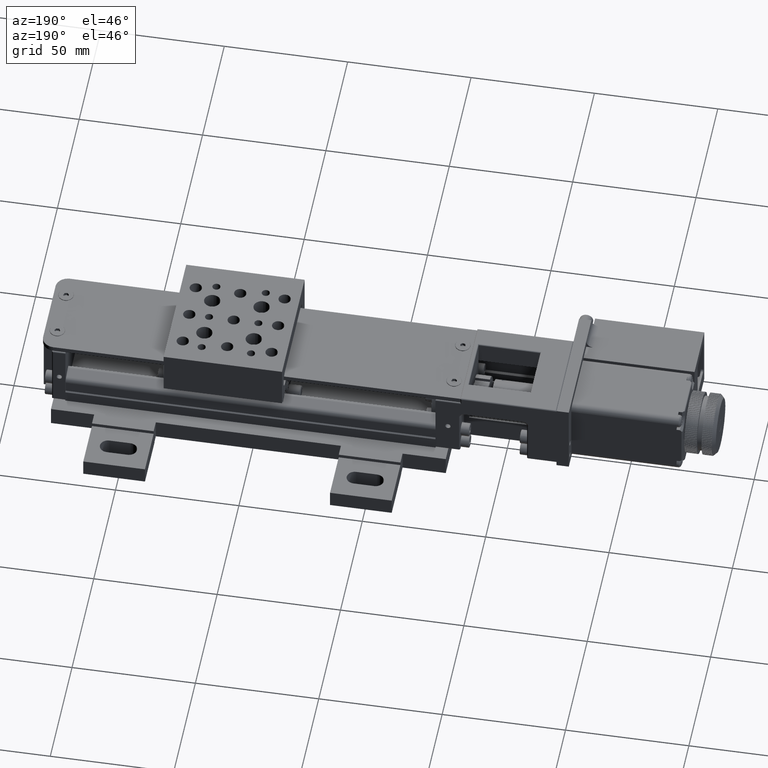
[diagram: clean part render]
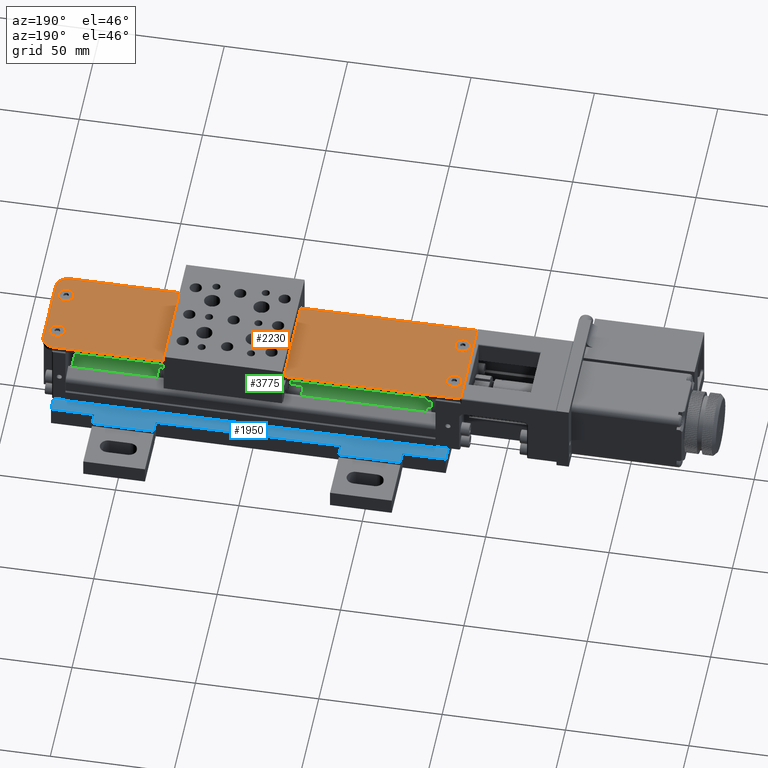
[diagram: same view with three faces highlighted in distinct colors, each labeled with its STEP entity id]
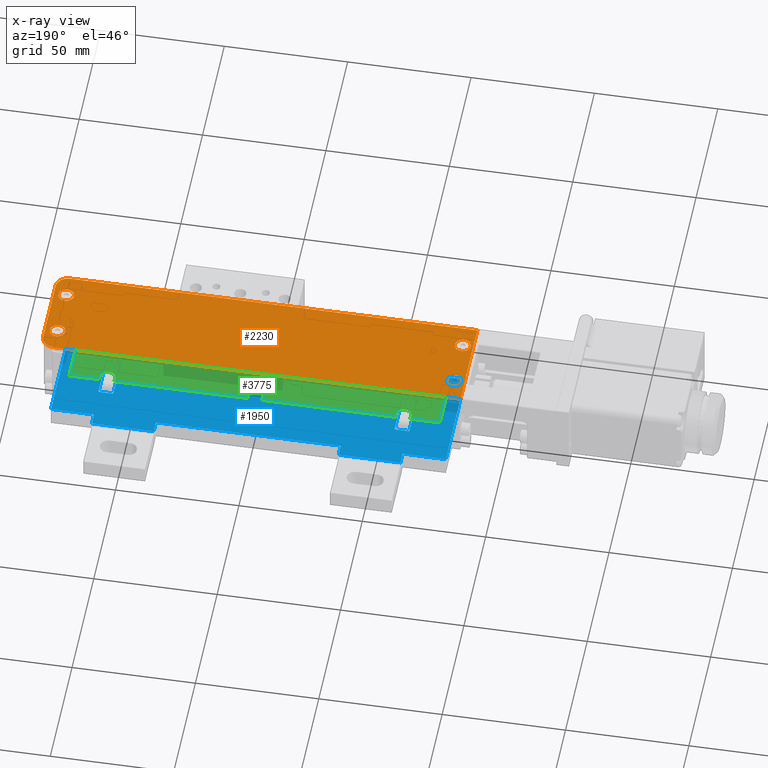
[diagram: x-ray of the same camera — body ghosted, the three highlighted faces saturated]
A machine part, auxiliary view with three faces highlighted in distinct colors.
The next image is the same camera in x-ray (body ghosted, the three faces saturated) — at least one of them is partly hidden behind the body in this view.
Their STEP definitions:

[orange] entity #2230 — the highlighted planar face has unit normal (0, 0, 1).
#62=FACE_BOUND('',#6952,.T.);
#63=FACE_BOUND('',#6953,.T.);
#64=FACE_BOUND('',#6954,.T.);
#65=FACE_BOUND('',#6955,.T.);
#684=PLANE('',#41369);
#2230=ADVANCED_FACE('',(#4567,#62,#63,#64,#65),#684,.T.);
#4567=FACE_OUTER_BOUND('',#6951,.T.);
#6951=EDGE_LOOP('',(#10798,#10799,#10800,#10801,#10802,#10803));
#6952=EDGE_LOOP('',(#10804,#10805,#10806,#10807));
#6953=EDGE_LOOP('',(#10808,#10809,#10810,#10811));
#6954=EDGE_LOOP('',(#10812,#10813,#10814,#10815));
#6955=EDGE_LOOP('',(#10816,#10817,#10818,#10819));
#10798=ORIENTED_EDGE('',*,*,#23501,.F.);
#10799=ORIENTED_EDGE('',*,*,#23502,.T.);
#10800=ORIENTED_EDGE('',*,*,#23497,.F.);
#10801=ORIENTED_EDGE('',*,*,#23494,.F.);
#10802=ORIENTED_EDGE('',*,*,#23503,.T.);
#10803=ORIENTED_EDGE('',*,*,#23486,.F.);
#10804=ORIENTED_EDGE('',*,*,#23444,.T.);
#10805=ORIENTED_EDGE('',*,*,#23443,.T.);
#10806=ORIENTED_EDGE('',*,*,#23442,.T.);
#10807=ORIENTED_EDGE('',*,*,#28929,.T.);
#10808=ORIENTED_EDGE('',*,*,#23453,.T.);
#10809=ORIENTED_EDGE('',*,*,#23452,.T.);
#10810=ORIENTED_EDGE('',*,*,#23451,.T.);
#10811=ORIENTED_EDGE('',*,*,#28934,.T.);
#10812=ORIENTED_EDGE('',*,*,#23465,.T.);
#10813=ORIENTED_EDGE('',*,*,#23464,.T.);
#10814=ORIENTED_EDGE('',*,*,#23463,.T.);
#10815=ORIENTED_EDGE('',*,*,#28939,.T.);
#10816=ORIENTED_EDGE('',*,*,#23477,.T.);
#10817=ORIENTED_EDGE('',*,*,#23476,.T.);
#10818=ORIENTED_EDGE('',*,*,#23475,.T.);
#10819=ORIENTED_EDGE('',*,*,#28944,.T.);
#23442=EDGE_CURVE('',#36647,#40262,#34084,.T.);
#23443=EDGE_CURVE('',#36649,#36647,#34085,.T.);
#23444=EDGE_CURVE('',#36648,#36649,#34086,.T.);
#23451=EDGE_CURVE('',#36654,#40265,#34091,.T.);
#23452=EDGE_CURVE('',#36656,#36654,#34092,.T.);
#23453=EDGE_CURVE('',#36655,#36656,#34093,.T.);
#23463=EDGE_CURVE('',#36662,#40268,#34101,.T.);
#23464=EDGE_CURVE('',#36664,#36662,#34102,.T.);
#23465=EDGE_CURVE('',#36663,#36664,#34103,.T.);
#23475=EDGE_CURVE('',#36670,#40271,#34111,.T.);
#23476=EDGE_CURVE('',#36672,#36670,#34112,.T.);
#23477=EDGE_CURVE('',#36671,#36672,#34113,.T.);
#23486=EDGE_CURVE('',#36678,#36679,#29829,.T.);
#23494=EDGE_CURVE('',#36685,#36686,#29837,.T.);
#23497=EDGE_CURVE('',#36686,#36687,#34119,.T.);
#23501=EDGE_CURVE('',#36688,#36678,#34121,.T.);
#23502=EDGE_CURVE('',#36688,#36687,#29841,.T.);
#23503=EDGE_CURVE('',#36685,#36679,#29842,.T.);
#28929=EDGE_CURVE('',#40262,#36648,#35810,.T.);
#28934=EDGE_CURVE('',#40265,#36655,#35813,.T.);
#28939=EDGE_CURVE('',#40268,#36663,#35816,.T.);
#28944=EDGE_CURVE('',#40271,#36671,#35819,.T.);
#29829=B_SPLINE_CURVE_WITH_KNOTS('',1,(#64374,#64375),.UNSPECIFIED.,.F.,
 .F.,(2,2),(0.,165.000000000001),.UNSPECIFIED.);
#29837=B_SPLINE_CURVE_WITH_KNOTS('',1,(#64390,#64391),.UNSPECIFIED.,.F.,
 .F.,(2,2),(0.,165.000000000001),.UNSPECIFIED.);
#29841=B_SPLINE_CURVE_WITH_KNOTS('',1,(#64410,#64411),.UNSPECIFIED.,.F.,
 .F.,(2,2),(0.,28.6),.UNSPECIFIED.);
#29842=B_SPLINE_CURVE_WITH_KNOTS('',1,(#64412,#64413),.UNSPECIFIED.,.F.,
 .F.,(2,2),(0.,38.6),.UNSPECIFIED.);
#34084=(
BOUNDED_CURVE()
B_SPLINE_CURVE(2,(#64244,#64245,#64246),.UNSPECIFIED.,.F.,.F.)
B_SPLINE_CURVE_WITH_KNOTS((3,3),(-9.8960168588078,-4.94800842940392),
 .UNSPECIFIED.)
CURVE()
GEOMETRIC_REPRESENTATION_ITEM()
RATIONAL_B_SPLINE_CURVE((1.,0.707106781186549,1.))
REPRESENTATION_ITEM('')
);
#34085=(
BOUNDED_CURVE()
B_SPLINE_CURVE(2,(#64247,#64248,#64249),.UNSPECIFIED.,.F.,.F.)
B_SPLINE_CURVE_WITH_KNOTS((3,3),(-4.94800842940388,0.),.UNSPECIFIED.)
CURVE()
GEOMETRIC_REPRESENTATION_ITEM()
RATIONAL_B_SPLINE_CURVE((1.,0.707106781186549,1.))
REPRESENTATION_ITEM('')
);
#34086=(
BOUNDED_CURVE()
B_SPLINE_CURVE(2,(#64250,#64251,#64252),.UNSPECIFIED.,.F.,.F.)
B_SPLINE_CURVE_WITH_KNOTS((3,3),(-9.8960168588078,-4.94800842940388),
 .UNSPECIFIED.)
CURVE()
GEOMETRIC_REPRESENTATION_ITEM()
RATIONAL_B_SPLINE_CURVE((1.,0.707106781186546,1.))
REPRESENTATION_ITEM('')
);
#34091=(
BOUNDED_CURVE()
B_SPLINE_CURVE(2,(#64271,#64272,#64273),.UNSPECIFIED.,.F.,.F.)
B_SPLINE_CURVE_WITH_KNOTS((3,3),(-9.89601685880779,-4.94800842940392),
 .UNSPECIFIED.)
CURVE()
GEOMETRIC_REPRESENTATION_ITEM()
RATIONAL_B_SPLINE_CURVE((1.,0.70710678118655,1.))
REPRESENTATION_ITEM('')
);
#34092=(
BOUNDED_CURVE()
B_SPLINE_CURVE(2,(#64274,#64275,#64276),.UNSPECIFIED.,.F.,.F.)
B_SPLINE_CURVE_WITH_KNOTS((3,3),(-4.94800842940387,0.),.UNSPECIFIED.)
CURVE()
GEOMETRIC_REPRESENTATION_ITEM()
RATIONAL_B_SPLINE_CURVE((1.,0.70710678118655,1.))
REPRESENTATION_ITEM('')
);
#34093=(
BOUNDED_CURVE()
B_SPLINE_CURVE(2,(#64277,#64278,#64279),.UNSPECIFIED.,.F.,.F.)
B_SPLINE_CURVE_WITH_KNOTS((3,3),(-9.89601685880779,-4.94800842940387),
 .UNSPECIFIED.)
CURVE()
GEOMETRIC_REPRESENTATION_ITEM()
RATIONAL_B_SPLINE_CURVE((1.,0.707106781186545,1.))
REPRESENTATION_ITEM('')
);
#34101=(
BOUNDED_CURVE()
B_SPLINE_CURVE(2,(#64307,#64308,#64309),.UNSPECIFIED.,.F.,.F.)
B_SPLINE_CURVE_WITH_KNOTS((3,3),(-9.8960168588078,-4.94800842940392),
 .UNSPECIFIED.)
CURVE()
GEOMETRIC_REPRESENTATION_ITEM()
RATIONAL_B_SPLINE_CURVE((1.,0.707106781186549,1.))
REPRESENTATION_ITEM('')
);
#34102=(
BOUNDED_CURVE()
B_SPLINE_CURVE(2,(#64310,#64311,#64312),.UNSPECIFIED.,.F.,.F.)
B_SPLINE_CURVE_WITH_KNOTS((3,3),(-4.94800842940388,0.),.UNSPECIFIED.)
CURVE()
GEOMETRIC_REPRESENTATION_ITEM()
RATIONAL_B_SPLINE_CURVE((1.,0.707106781186549,1.))
REPRESENTATION_ITEM('')
);
#34103=(
BOUNDED_CURVE()
B_SPLINE_CURVE(2,(#64313,#64314,#64315),.UNSPECIFIED.,.F.,.F.)
B_SPLINE_CURVE_WITH_KNOTS((3,3),(-9.8960168588078,-4.94800842940388),
 .UNSPECIFIED.)
CURVE()
GEOMETRIC_REPRESENTATION_ITEM()
RATIONAL_B_SPLINE_CURVE((1.,0.707106781186546,1.))
REPRESENTATION_ITEM('')
);
#34111=(
BOUNDED_CURVE()
B_SPLINE_CURVE(2,(#64343,#64344,#64345),.UNSPECIFIED.,.F.,.F.)
B_SPLINE_CURVE_WITH_KNOTS((3,3),(-9.89601685880779,-4.94800842940392),
 .UNSPECIFIED.)
CURVE()
GEOMETRIC_REPRESENTATION_ITEM()
RATIONAL_B_SPLINE_CURVE((1.,0.70710678118655,1.))
REPRESENTATION_ITEM('')
);
#34112=(
BOUNDED_CURVE()
B_SPLINE_CURVE(2,(#64346,#64347,#64348),.UNSPECIFIED.,.F.,.F.)
B_SPLINE_CURVE_WITH_KNOTS((3,3),(-4.94800842940387,0.),.UNSPECIFIED.)
CURVE()
GEOMETRIC_REPRESENTATION_ITEM()
RATIONAL_B_SPLINE_CURVE((1.,0.70710678118655,1.))
REPRESENTATION_ITEM('')
);
#34113=(
BOUNDED_CURVE()
B_SPLINE_CURVE(2,(#64349,#64350,#64351),.UNSPECIFIED.,.F.,.F.)
B_SPLINE_CURVE_WITH_KNOTS((3,3),(-9.89601685880778,-4.94800842940387),
 .UNSPECIFIED.)
CURVE()
GEOMETRIC_REPRESENTATION_ITEM()
RATIONAL_B_SPLINE_CURVE((1.,0.707106781186547,1.))
REPRESENTATION_ITEM('')
);
#34119=(
BOUNDED_CURVE()
B_SPLINE_CURVE(2,(#64397,#64398,#64399),.UNSPECIFIED.,.F.,.F.)
B_SPLINE_CURVE_WITH_KNOTS((3,3),(0.,7.8539816339745),.UNSPECIFIED.)
CURVE()
GEOMETRIC_REPRESENTATION_ITEM()
RATIONAL_B_SPLINE_CURVE((1.,0.707106781186542,1.))
REPRESENTATION_ITEM('')
);
#34121=(
BOUNDED_CURVE()
B_SPLINE_CURVE(2,(#64407,#64408,#64409),.UNSPECIFIED.,.F.,.F.)
B_SPLINE_CURVE_WITH_KNOTS((3,3),(0.,7.85398163397448),.UNSPECIFIED.)
CURVE()
GEOMETRIC_REPRESENTATION_ITEM()
RATIONAL_B_SPLINE_CURVE((1.,0.707106781186546,1.))
REPRESENTATION_ITEM('')
);
#35810=(
BOUNDED_CURVE()
B_SPLINE_CURVE(2,(#82118,#82119,#82120),.UNSPECIFIED.,.F.,.F.)
B_SPLINE_CURVE_WITH_KNOTS((3,3),(-4.94800842940392,0.),.UNSPECIFIED.)
CURVE()
GEOMETRIC_REPRESENTATION_ITEM()
RATIONAL_B_SPLINE_CURVE((1.,0.707106781186546,1.))
REPRESENTATION_ITEM('')
);
#35813=(
BOUNDED_CURVE()
B_SPLINE_CURVE(2,(#82133,#82134,#82135),.UNSPECIFIED.,.F.,.F.)
B_SPLINE_CURVE_WITH_KNOTS((3,3),(-4.94800842940392,0.),.UNSPECIFIED.)
CURVE()
GEOMETRIC_REPRESENTATION_ITEM()
RATIONAL_B_SPLINE_CURVE((1.,0.707106781186545,1.))
REPRESENTATION_ITEM('')
);
#35816=(
BOUNDED_CURVE()
B_SPLINE_CURVE(2,(#82146,#82147,#82148),.UNSPECIFIED.,.F.,.F.)
B_SPLINE_CURVE_WITH_KNOTS((3,3),(-4.94800842940392,0.),.UNSPECIFIED.)
CURVE()
GEOMETRIC_REPRESENTATION_ITEM()
RATIONAL_B_SPLINE_CURVE((1.,0.707106781186546,1.))
REPRESENTATION_ITEM('')
);
#35819=(
BOUNDED_CURVE()
B_SPLINE_CURVE(2,(#82159,#82160,#82161),.UNSPECIFIED.,.F.,.F.)
B_SPLINE_CURVE_WITH_KNOTS((3,3),(-4.94800842940392,0.),.UNSPECIFIED.)
CURVE()
GEOMETRIC_REPRESENTATION_ITEM()
RATIONAL_B_SPLINE_CURVE((1.,0.707106781186545,1.))
REPRESENTATION_ITEM('')
);
#36647=VERTEX_POINT('',#58215);
#36648=VERTEX_POINT('',#58216);
#36649=VERTEX_POINT('',#58217);
#36654=VERTEX_POINT('',#58222);
#36655=VERTEX_POINT('',#58223);
#36656=VERTEX_POINT('',#58224);
#36662=VERTEX_POINT('',#58230);
#36663=VERTEX_POINT('',#58231);
#36664=VERTEX_POINT('',#58232);
#36670=VERTEX_POINT('',#58238);
#36671=VERTEX_POINT('',#58239);
#36672=VERTEX_POINT('',#58240);
#36678=VERTEX_POINT('',#58246);
#36679=VERTEX_POINT('',#58247);
#36685=VERTEX_POINT('',#58253);
#36686=VERTEX_POINT('',#58254);
#36687=VERTEX_POINT('',#58255);
#36688=VERTEX_POINT('',#58256);
#40262=VERTEX_POINT('',#61830);
#40265=VERTEX_POINT('',#61833);
#40268=VERTEX_POINT('',#61836);
#40271=VERTEX_POINT('',#61839);
#41369=AXIS2_PLACEMENT_3D('',#47908,#43435,$);
#43435=DIRECTION('',(0.,0.,1.));
#47908=CARTESIAN_POINT('',(153.119999457498,-25.4800008414871,38.5015596025048));
#58215=CARTESIAN_POINT('',(130.999999457497,10.9499991585129,38.5015596025048));
#58216=CARTESIAN_POINT('',(130.999999457497,4.64999915851294,38.5015596025048));
#58217=CARTESIAN_POINT('',(127.849999457498,7.79999915851294,38.5015596025048));
#58222=CARTESIAN_POINT('',(-29.8000005425023,-9.05000084148713,38.5015596025048));
#58223=CARTESIAN_POINT('',(-29.8000005425023,-15.3500008414871,38.5015596025048));
#58224=CARTESIAN_POINT('',(-32.9500005425023,-12.2000008414871,38.5015596025048));
#58230=CARTESIAN_POINT('',(-29.8000005425023,10.9499991585128,38.5015596025048));
#58231=CARTESIAN_POINT('',(-29.8000005425023,4.64999915851284,38.5015596025048));
#58232=CARTESIAN_POINT('',(-32.9500005425023,7.79999915851285,38.5015596025048));
#58238=CARTESIAN_POINT('',(130.999999457497,-9.05000084148703,38.5015596025048));
#58239=CARTESIAN_POINT('',(130.999999457497,-15.350000841487,38.5015596025048));
#58240=CARTESIAN_POINT('',(127.849999457498,-12.200000841487,38.5015596025048));
#58246=CARTESIAN_POINT('',(130.999999457497,-21.500000841487,38.5015596025048));
#58247=CARTESIAN_POINT('',(-34.0000005425031,-21.5000008414871,38.5015596025048));
#58253=CARTESIAN_POINT('',(-34.0000005425031,17.0999991585129,38.5015596025048));
#58254=CARTESIAN_POINT('',(130.999999457497,17.099999158513,38.5015596025048));
#58255=CARTESIAN_POINT('',(135.999999457498,12.099999158513,38.5015596025048));
#58256=CARTESIAN_POINT('',(135.999999457497,-16.500000841487,38.5015596025048));
#61830=CARTESIAN_POINT('',(134.149999457497,7.79999915851294,38.5015596025048));
#61833=CARTESIAN_POINT('',(-26.6500005425023,-12.2000008414871,38.5015596025048));
#61836=CARTESIAN_POINT('',(-26.6500005425023,7.79999915851284,38.5015596025048));
#61839=CARTESIAN_POINT('',(134.149999457497,-12.200000841487,38.5015596025048));
#64244=CARTESIAN_POINT('',(130.999999457497,10.9499991585129,38.5015596025048));
#64245=CARTESIAN_POINT('',(134.149999457497,10.9499991585129,38.5015596025048));
#64246=CARTESIAN_POINT('',(134.149999457497,7.79999915851294,38.5015596025048));
#64247=CARTESIAN_POINT('',(127.849999457498,7.79999915851294,38.5015596025048));
#64248=CARTESIAN_POINT('',(127.849999457498,10.9499991585129,38.5015596025048));
#64249=CARTESIAN_POINT('',(130.999999457497,10.9499991585129,38.5015596025048));
#64250=CARTESIAN_POINT('',(130.999999457497,4.64999915851294,38.5015596025048));
#64251=CARTESIAN_POINT('',(127.849999457497,4.64999915851294,38.5015596025048));
#64252=CARTESIAN_POINT('',(127.849999457498,7.79999915851294,38.5015596025048));
#64271=CARTESIAN_POINT('',(-29.8000005425023,-9.05000084148713,38.5015596025048));
#64272=CARTESIAN_POINT('',(-26.6500005425023,-9.05000084148713,38.5015596025048));
#64273=CARTESIAN_POINT('',(-26.6500005425023,-12.2000008414871,38.5015596025048));
#64274=CARTESIAN_POINT('',(-32.9500005425023,-12.2000008414871,38.5015596025048));
#64275=CARTESIAN_POINT('',(-32.9500005425023,-9.05000084148713,38.5015596025048));
#64276=CARTESIAN_POINT('',(-29.8000005425023,-9.05000084148713,38.5015596025048));
#64277=CARTESIAN_POINT('',(-29.8000005425023,-15.3500008414871,38.5015596025048));
#64278=CARTESIAN_POINT('',(-32.9500005425023,-15.3500008414871,38.5015596025048));
#64279=CARTESIAN_POINT('',(-32.9500005425023,-12.2000008414871,38.5015596025048));
#64307=CARTESIAN_POINT('',(-29.8000005425023,10.9499991585128,38.5015596025048));
#64308=CARTESIAN_POINT('',(-26.6500005425023,10.9499991585128,38.5015596025048));
#64309=CARTESIAN_POINT('',(-26.6500005425023,7.79999915851284,38.5015596025048));
#64310=CARTESIAN_POINT('',(-32.9500005425023,7.79999915851284,38.5015596025048));
#64311=CARTESIAN_POINT('',(-32.9500005425023,10.9499991585128,38.5015596025048));
#64312=CARTESIAN_POINT('',(-29.8000005425023,10.9499991585128,38.5015596025048));
#64313=CARTESIAN_POINT('',(-29.8000005425023,4.64999915851284,38.5015596025048));
#64314=CARTESIAN_POINT('',(-32.9500005425023,4.64999915851284,38.5015596025048));
#64315=CARTESIAN_POINT('',(-32.9500005425023,7.79999915851284,38.5015596025048));
#64343=CARTESIAN_POINT('',(130.999999457497,-9.05000084148703,38.5015596025048));
#64344=CARTESIAN_POINT('',(134.149999457497,-9.05000084148703,38.5015596025048));
#64345=CARTESIAN_POINT('',(134.149999457497,-12.200000841487,38.5015596025048));
#64346=CARTESIAN_POINT('',(127.849999457498,-12.200000841487,38.5015596025048));
#64347=CARTESIAN_POINT('',(127.849999457498,-9.05000084148703,38.5015596025048));
#64348=CARTESIAN_POINT('',(130.999999457497,-9.05000084148703,38.5015596025048));
#64349=CARTESIAN_POINT('',(130.999999457497,-15.350000841487,38.5015596025048));
#64350=CARTESIAN_POINT('',(127.849999457497,-15.350000841487,38.5015596025048));
#64351=CARTESIAN_POINT('',(127.849999457498,-12.200000841487,38.5015596025048));
#64374=CARTESIAN_POINT('',(130.999999457497,-21.500000841487,38.5015596025048));
#64375=CARTESIAN_POINT('',(-34.0000005425031,-21.5000008414871,38.5015596025048));
#64390=CARTESIAN_POINT('',(-34.0000005425031,17.0999991585129,38.5015596025048));
#64391=CARTESIAN_POINT('',(130.999999457497,17.099999158513,38.5015596025048));
#64397=CARTESIAN_POINT('',(130.999999457497,17.099999158513,38.5015596025048));
#64398=CARTESIAN_POINT('',(135.999999457498,17.0999991585131,38.5015596025048));
#64399=CARTESIAN_POINT('',(135.999999457498,12.099999158513,38.5015596025048));
#64407=CARTESIAN_POINT('',(135.999999457497,-16.500000841487,38.5015596025048));
#64408=CARTESIAN_POINT('',(135.999999457497,-21.500000841487,38.5015596025048));
#64409=CARTESIAN_POINT('',(130.999999457497,-21.500000841487,38.5015596025048));
#64410=CARTESIAN_POINT('',(135.999999457497,-16.500000841487,38.5015596025048));
#64411=CARTESIAN_POINT('',(135.999999457498,12.099999158513,38.5015596025048));
#64412=CARTESIAN_POINT('',(-34.0000005425031,17.0999991585129,38.5015596025048));
#64413=CARTESIAN_POINT('',(-34.0000005425031,-21.5000008414871,38.5015596025048));
#82118=CARTESIAN_POINT('',(134.149999457497,7.79999915851294,38.5015596025048));
#82119=CARTESIAN_POINT('',(134.149999457498,4.64999915851294,38.5015596025048));
#82120=CARTESIAN_POINT('',(130.999999457497,4.64999915851294,38.5015596025048));
#82133=CARTESIAN_POINT('',(-26.6500005425023,-12.2000008414871,38.5015596025048));
#82134=CARTESIAN_POINT('',(-26.6500005425023,-15.3500008414871,38.5015596025048));
#82135=CARTESIAN_POINT('',(-29.8000005425023,-15.3500008414871,38.5015596025048));
#82146=CARTESIAN_POINT('',(-26.6500005425023,7.79999915851284,38.5015596025048));
#82147=CARTESIAN_POINT('',(-26.6500005425023,4.64999915851284,38.5015596025048));
#82148=CARTESIAN_POINT('',(-29.8000005425023,4.64999915851284,38.5015596025048));
#82159=CARTESIAN_POINT('',(134.149999457497,-12.200000841487,38.5015596025048));
#82160=CARTESIAN_POINT('',(134.149999457498,-15.350000841487,38.5015596025048));
#82161=CARTESIAN_POINT('',(130.999999457497,-15.350000841487,38.5015596025048));

[blue] entity #1950 — the highlighted planar face has unit normal (0, 0, 1).
#19=FACE_BOUND('',#6629,.T.);
#20=FACE_BOUND('',#6630,.T.);
#500=PLANE('',#41135);
#1950=ADVANCED_FACE('',(#4287,#19,#20),#500,.T.);
#4287=FACE_OUTER_BOUND('',#6628,.T.);
#6628=EDGE_LOOP('',(#9231,#9232,#9233,#9234,#9235,#9236,#9237,#9238,#9239,
#9240,#9241,#9242,#9243,#9244,#9245,#9246,#9247,#9248,#9249,#9250));
#6629=EDGE_LOOP('',(#9251,#9252,#9253,#9254));
#6630=EDGE_LOOP('',(#9255,#9256,#9257,#9258));
#9231=ORIENTED_EDGE('',*,*,#22621,.T.);
#9232=ORIENTED_EDGE('',*,*,#22622,.T.);
#9233=ORIENTED_EDGE('',*,*,#22623,.T.);
#9234=ORIENTED_EDGE('',*,*,#22624,.T.);
#9235=ORIENTED_EDGE('',*,*,#22625,.T.);
#9236=ORIENTED_EDGE('',*,*,#22626,.T.);
#9237=ORIENTED_EDGE('',*,*,#22627,.T.);
#9238=ORIENTED_EDGE('',*,*,#22628,.T.);
#9239=ORIENTED_EDGE('',*,*,#22629,.T.);
#9240=ORIENTED_EDGE('',*,*,#22630,.T.);
#9241=ORIENTED_EDGE('',*,*,#22631,.T.);
#9242=ORIENTED_EDGE('',*,*,#22632,.T.);
#9243=ORIENTED_EDGE('',*,*,#22633,.T.);
#9244=ORIENTED_EDGE('',*,*,#22634,.T.);
#9245=ORIENTED_EDGE('',*,*,#22635,.T.);
#9246=ORIENTED_EDGE('',*,*,#22636,.T.);
#9247=ORIENTED_EDGE('',*,*,#22637,.T.);
#9248=ORIENTED_EDGE('',*,*,#22638,.T.);
#9249=ORIENTED_EDGE('',*,*,#22639,.T.);
#9250=ORIENTED_EDGE('',*,*,#22640,.T.);
#9251=ORIENTED_EDGE('',*,*,#22597,.F.);
#9252=ORIENTED_EDGE('',*,*,#22585,.F.);
#9253=ORIENTED_EDGE('',*,*,#22589,.F.);
#9254=ORIENTED_EDGE('',*,*,#22594,.F.);
#9255=ORIENTED_EDGE('',*,*,#22615,.F.);
#9256=ORIENTED_EDGE('',*,*,#22603,.F.);
#9257=ORIENTED_EDGE('',*,*,#22607,.F.);
#9258=ORIENTED_EDGE('',*,*,#22612,.F.);
#22585=EDGE_CURVE('',#36027,#36028,#29298,.T.);
#22589=EDGE_CURVE('',#36031,#36027,#29302,.T.);
#22594=EDGE_CURVE('',#36035,#36031,#29307,.T.);
#22597=EDGE_CURVE('',#36028,#36035,#29310,.T.);
#22603=EDGE_CURVE('',#36039,#36040,#29316,.T.);
#22607=EDGE_CURVE('',#36043,#36039,#29320,.T.);
#22612=EDGE_CURVE('',#36047,#36043,#29325,.T.);
#22615=EDGE_CURVE('',#36040,#36047,#29328,.T.);
#22621=EDGE_CURVE('',#36051,#36052,#29334,.T.);
#22622=EDGE_CURVE('',#36052,#36053,#29335,.T.);
#22623=EDGE_CURVE('',#36053,#36054,#29336,.T.);
#22624=EDGE_CURVE('',#36054,#36055,#29337,.T.);
#22625=EDGE_CURVE('',#36055,#36056,#29338,.T.);
#22626=EDGE_CURVE('',#36056,#36057,#29339,.T.);
#22627=EDGE_CURVE('',#36057,#36058,#29340,.T.);
#22628=EDGE_CURVE('',#36058,#36059,#29341,.T.);
#22629=EDGE_CURVE('',#36059,#36060,#29342,.T.);
#22630=EDGE_CURVE('',#36060,#36061,#29343,.T.);
#22631=EDGE_CURVE('',#36061,#36062,#29344,.T.);
#22632=EDGE_CURVE('',#36062,#36063,#29345,.T.);
#22633=EDGE_CURVE('',#36063,#36064,#29346,.T.);
#22634=EDGE_CURVE('',#36064,#36065,#29347,.T.);
#22635=EDGE_CURVE('',#36065,#36066,#29348,.T.);
#22636=EDGE_CURVE('',#36066,#36067,#29349,.T.);
#22637=EDGE_CURVE('',#36067,#36068,#29350,.T.);
#22638=EDGE_CURVE('',#36068,#36069,#29351,.T.);
#22639=EDGE_CURVE('',#36069,#36070,#29352,.T.);
#22640=EDGE_CURVE('',#36070,#36051,#29353,.T.);
#29298=B_SPLINE_CURVE_WITH_KNOTS('',1,(#62027,#62028),.UNSPECIFIED.,.F.,
 .F.,(2,2),(0.,5.9999999999999),.UNSPECIFIED.);
#29302=B_SPLINE_CURVE_WITH_KNOTS('',1,(#62035,#62036),.UNSPECIFIED.,.F.,
 .F.,(2,2),(0.,24.),.UNSPECIFIED.);
#29307=B_SPLINE_CURVE_WITH_KNOTS('',1,(#62045,#62046),.UNSPECIFIED.,.F.,
 .F.,(2,2),(0.,5.9999999999999),.UNSPECIFIED.);
#29310=B_SPLINE_CURVE_WITH_KNOTS('',1,(#62051,#62052),.UNSPECIFIED.,.F.,
 .F.,(2,2),(0.,24.),.UNSPECIFIED.);
#29316=B_SPLINE_CURVE_WITH_KNOTS('',1,(#62063,#62064),.UNSPECIFIED.,.F.,
 .F.,(2,2),(0.,6.),.UNSPECIFIED.);
#29320=B_SPLINE_CURVE_WITH_KNOTS('',1,(#62071,#62072),.UNSPECIFIED.,.F.,
 .F.,(2,2),(0.,24.),.UNSPECIFIED.);
#29325=B_SPLINE_CURVE_WITH_KNOTS('',1,(#62081,#62082),.UNSPECIFIED.,.F.,
 .F.,(2,2),(0.,6.),.UNSPECIFIED.);
#29328=B_SPLINE_CURVE_WITH_KNOTS('',1,(#62087,#62088),.UNSPECIFIED.,.F.,
 .F.,(2,2),(0.,24.0000000000001),.UNSPECIFIED.);
#29334=B_SPLINE_CURVE_WITH_KNOTS('',1,(#62099,#62100),.UNSPECIFIED.,.F.,
 .F.,(2,2),(0.,4.9999999999999),.UNSPECIFIED.);
#29335=B_SPLINE_CURVE_WITH_KNOTS('',1,(#62101,#62102),.UNSPECIFIED.,.F.,
 .F.,(2,2),(0.,17.5),.UNSPECIFIED.);
#29336=B_SPLINE_CURVE_WITH_KNOTS('',1,(#62103,#62104),.UNSPECIFIED.,.F.,
 .F.,(2,2),(0.,44.9999999999999),.UNSPECIFIED.);
#29337=B_SPLINE_CURVE_WITH_KNOTS('',1,(#62105,#62106),.UNSPECIFIED.,.F.,
 .F.,(2,2),(0.,17.5),.UNSPECIFIED.);
#29338=B_SPLINE_CURVE_WITH_KNOTS('',1,(#62107,#62108),.UNSPECIFIED.,.F.,
 .F.,(2,2),(0.,5.),.UNSPECIFIED.);
#29339=B_SPLINE_CURVE_WITH_KNOTS('',1,(#62109,#62110),.UNSPECIFIED.,.F.,
 .F.,(2,2),(0.,25.),.UNSPECIFIED.);
#29340=B_SPLINE_CURVE_WITH_KNOTS('',1,(#62111,#62112),.UNSPECIFIED.,.F.,
 .F.,(2,2),(0.,5.),.UNSPECIFIED.);
#29341=B_SPLINE_CURVE_WITH_KNOTS('',1,(#62113,#62114),.UNSPECIFIED.,.F.,
 .F.,(2,2),(0.,75.),.UNSPECIFIED.);
#29342=B_SPLINE_CURVE_WITH_KNOTS('',1,(#62115,#62116),.UNSPECIFIED.,.F.,
 .F.,(2,2),(0.,5.),.UNSPECIFIED.);
#29343=B_SPLINE_CURVE_WITH_KNOTS('',1,(#62117,#62118),.UNSPECIFIED.,.F.,
 .F.,(2,2),(0.,25.),.UNSPECIFIED.);
#29344=B_SPLINE_CURVE_WITH_KNOTS('',1,(#62119,#62120),.UNSPECIFIED.,.F.,
 .F.,(2,2),(0.,4.9999999999999),.UNSPECIFIED.);
#29345=B_SPLINE_CURVE_WITH_KNOTS('',1,(#62121,#62122),.UNSPECIFIED.,.F.,
 .F.,(2,2),(0.,17.5),.UNSPECIFIED.);
#29346=B_SPLINE_CURVE_WITH_KNOTS('',1,(#62123,#62124),.UNSPECIFIED.,.F.,
 .F.,(2,2),(0.,44.9999999999999),.UNSPECIFIED.);
#29347=B_SPLINE_CURVE_WITH_KNOTS('',1,(#62125,#62126),.UNSPECIFIED.,.F.,
 .F.,(2,2),(0.,17.5000000000001),.UNSPECIFIED.);
#29348=B_SPLINE_CURVE_WITH_KNOTS('',1,(#62127,#62128),.UNSPECIFIED.,.F.,
 .F.,(2,2),(0.,5.0000000000001),.UNSPECIFIED.);
#29349=B_SPLINE_CURVE_WITH_KNOTS('',1,(#62129,#62130),.UNSPECIFIED.,.F.,
 .F.,(2,2),(0.,25.),.UNSPECIFIED.);
#29350=B_SPLINE_CURVE_WITH_KNOTS('',1,(#62131,#62132),.UNSPECIFIED.,.F.,
 .F.,(2,2),(0.,5.),.UNSPECIFIED.);
#29351=B_SPLINE_CURVE_WITH_KNOTS('',1,(#62133,#62134),.UNSPECIFIED.,.F.,
 .F.,(2,2),(0.,74.9999999999999),.UNSPECIFIED.);
#29352=B_SPLINE_CURVE_WITH_KNOTS('',1,(#62135,#62136),.UNSPECIFIED.,.F.,
 .F.,(2,2),(0.,5.),.UNSPECIFIED.);
#29353=B_SPLINE_CURVE_WITH_KNOTS('',1,(#62137,#62138),.UNSPECIFIED.,.F.,
 .F.,(2,2),(0.,25.),.UNSPECIFIED.);
#36027=VERTEX_POINT('',#57595);
#36028=VERTEX_POINT('',#57596);
#36031=VERTEX_POINT('',#57599);
#36035=VERTEX_POINT('',#57603);
#36039=VERTEX_POINT('',#57607);
#36040=VERTEX_POINT('',#57608);
#36043=VERTEX_POINT('',#57611);
#36047=VERTEX_POINT('',#57615);
#36051=VERTEX_POINT('',#57619);
#36052=VERTEX_POINT('',#57620);
#36053=VERTEX_POINT('',#57621);
#36054=VERTEX_POINT('',#57622);
#36055=VERTEX_POINT('',#57623);
#36056=VERTEX_POINT('',#57624);
#36057=VERTEX_POINT('',#57625);
#36058=VERTEX_POINT('',#57626);
#36059=VERTEX_POINT('',#57627);
#36060=VERTEX_POINT('',#57628);
#36061=VERTEX_POINT('',#57629);
#36062=VERTEX_POINT('',#57630);
#36063=VERTEX_POINT('',#57631);
#36064=VERTEX_POINT('',#57632);
#36065=VERTEX_POINT('',#57633);
#36066=VERTEX_POINT('',#57634);
#36067=VERTEX_POINT('',#57635);
#36068=VERTEX_POINT('',#57636);
#36069=VERTEX_POINT('',#57637);
#36070=VERTEX_POINT('',#57638);
#41135=AXIS2_PLACEMENT_3D('',#45484,#43201,$);
#43201=DIRECTION('',(0.,0.,1.));
#45484=CARTESIAN_POINT('',(-45.1200005425055,-33.1200008414871,8.50155960250485));
#57595=CARTESIAN_POINT('',(-12.0000005425047,-14.2000008414871,8.50155960250493));
#57596=CARTESIAN_POINT('',(-6.00000054250479,-14.2000008414871,8.50155960250483));
#57599=CARTESIAN_POINT('',(-12.0000005425047,9.79999915851292,8.50155960250484));
#57603=CARTESIAN_POINT('',(-6.00000054250479,9.79999915851292,8.50155960250484));
#57607=CARTESIAN_POINT('',(107.999999457497,-14.200000841487,8.50155960250483));
#57608=CARTESIAN_POINT('',(113.999999457497,-14.200000841487,8.50155960250483));
#57611=CARTESIAN_POINT('',(107.999999457497,9.79999915851302,8.50155960250484));
#57615=CARTESIAN_POINT('',(113.999999457497,9.79999915851312,8.50155960250484));
#57619=CARTESIAN_POINT('',(113.499999457495,-27.5000008414868,8.50155960250482));
#57620=CARTESIAN_POINT('',(113.499999457495,-22.5000008414869,8.50155960250482));
#57621=CARTESIAN_POINT('',(130.999999457495,-22.5000008414868,8.50155960250482));
#57622=CARTESIAN_POINT('',(130.999999457495,22.4999991585131,8.50155960250484));
#57623=CARTESIAN_POINT('',(113.499999457495,22.4999991585131,8.50155960250484));
#57624=CARTESIAN_POINT('',(113.499999457495,27.4999991585131,8.50155960250485));
#57625=CARTESIAN_POINT('',(88.4999994574945,27.4999991585131,8.50155960250485));
#57626=CARTESIAN_POINT('',(88.4999994574945,22.4999991585131,8.50155960250484));
#57627=CARTESIAN_POINT('',(13.4999994574945,22.499999158513,8.50155960250484));
#57628=CARTESIAN_POINT('',(13.4999994574945,27.499999158513,8.50155960250485));
#57629=CARTESIAN_POINT('',(-11.5000005425055,27.499999158513,8.50155960250485));
#57630=CARTESIAN_POINT('',(-11.5000005425055,22.4999991585131,8.50155960250484));
#57631=CARTESIAN_POINT('',(-29.0000005425055,22.499999158513,8.50155960250484));
#57632=CARTESIAN_POINT('',(-29.0000005425055,-22.5000008414869,8.50155960250492));
#57633=CARTESIAN_POINT('',(-11.5000005425054,-22.5000008414869,8.50155960250492));
#57634=CARTESIAN_POINT('',(-11.5000005425054,-27.500000841487,8.50155960250492));
#57635=CARTESIAN_POINT('',(13.4999994574946,-27.5000008414869,8.50155960250482));
#57636=CARTESIAN_POINT('',(13.4999994574946,-22.5000008414869,8.50155960250482));
#57637=CARTESIAN_POINT('',(88.4999994574945,-22.5000008414869,8.50155960250482));
#57638=CARTESIAN_POINT('',(88.4999994574945,-27.5000008414869,8.50155960250482));
#62027=CARTESIAN_POINT('',(-12.0000005425047,-14.2000008414871,8.50155960250493));
#62028=CARTESIAN_POINT('',(-6.00000054250479,-14.2000008414871,8.50155960250483));
#62035=CARTESIAN_POINT('',(-12.0000005425047,9.79999915851292,8.50155960250484));
#62036=CARTESIAN_POINT('',(-12.0000005425047,-14.2000008414871,8.50155960250493));
#62045=CARTESIAN_POINT('',(-6.00000054250479,9.79999915851292,8.50155960250484));
#62046=CARTESIAN_POINT('',(-12.0000005425047,9.79999915851292,8.50155960250484));
#62051=CARTESIAN_POINT('',(-6.00000054250479,-14.2000008414871,8.50155960250483));
#62052=CARTESIAN_POINT('',(-6.00000054250479,9.79999915851292,8.50155960250484));
#62063=CARTESIAN_POINT('',(107.999999457497,-14.200000841487,8.50155960250483));
#62064=CARTESIAN_POINT('',(113.999999457497,-14.200000841487,8.50155960250483));
#62071=CARTESIAN_POINT('',(107.999999457497,9.79999915851302,8.50155960250484));
#62072=CARTESIAN_POINT('',(107.999999457497,-14.200000841487,8.50155960250483));
#62081=CARTESIAN_POINT('',(113.999999457497,9.79999915851312,8.50155960250484));
#62082=CARTESIAN_POINT('',(107.999999457497,9.79999915851302,8.50155960250484));
#62087=CARTESIAN_POINT('',(113.999999457497,-14.200000841487,8.50155960250483));
#62088=CARTESIAN_POINT('',(113.999999457497,9.79999915851312,8.50155960250484));
#62099=CARTESIAN_POINT('',(113.499999457495,-27.5000008414868,8.50155960250482));
#62100=CARTESIAN_POINT('',(113.499999457495,-22.5000008414869,8.50155960250482));
#62101=CARTESIAN_POINT('',(113.499999457495,-22.5000008414869,8.50155960250482));
#62102=CARTESIAN_POINT('',(130.999999457495,-22.5000008414868,8.50155960250482));
#62103=CARTESIAN_POINT('',(130.999999457495,-22.5000008414868,8.50155960250482));
#62104=CARTESIAN_POINT('',(130.999999457495,22.4999991585131,8.50155960250484));
#62105=CARTESIAN_POINT('',(130.999999457495,22.4999991585131,8.50155960250484));
#62106=CARTESIAN_POINT('',(113.499999457495,22.4999991585131,8.50155960250484));
#62107=CARTESIAN_POINT('',(113.499999457495,22.4999991585131,8.50155960250484));
#62108=CARTESIAN_POINT('',(113.499999457495,27.4999991585131,8.50155960250485));
#62109=CARTESIAN_POINT('',(113.499999457495,27.4999991585131,8.50155960250485));
#62110=CARTESIAN_POINT('',(88.4999994574945,27.4999991585131,8.50155960250485));
#62111=CARTESIAN_POINT('',(88.4999994574945,27.4999991585131,8.50155960250485));
#62112=CARTESIAN_POINT('',(88.4999994574945,22.4999991585131,8.50155960250484));
#62113=CARTESIAN_POINT('',(88.4999994574945,22.4999991585131,8.50155960250484));
#62114=CARTESIAN_POINT('',(13.4999994574945,22.499999158513,8.50155960250484));
#62115=CARTESIAN_POINT('',(13.4999994574945,22.499999158513,8.50155960250484));
#62116=CARTESIAN_POINT('',(13.4999994574945,27.499999158513,8.50155960250485));
#62117=CARTESIAN_POINT('',(13.4999994574945,27.499999158513,8.50155960250485));
#62118=CARTESIAN_POINT('',(-11.5000005425055,27.499999158513,8.50155960250485));
#62119=CARTESIAN_POINT('',(-11.5000005425055,27.499999158513,8.50155960250485));
#62120=CARTESIAN_POINT('',(-11.5000005425055,22.4999991585131,8.50155960250484));
#62121=CARTESIAN_POINT('',(-11.5000005425055,22.4999991585131,8.50155960250484));
#62122=CARTESIAN_POINT('',(-29.0000005425055,22.499999158513,8.50155960250484));
#62123=CARTESIAN_POINT('',(-29.0000005425055,22.499999158513,8.50155960250484));
#62124=CARTESIAN_POINT('',(-29.0000005425055,-22.5000008414869,8.50155960250492));
#62125=CARTESIAN_POINT('',(-29.0000005425055,-22.5000008414869,8.50155960250492));
#62126=CARTESIAN_POINT('',(-11.5000005425054,-22.5000008414869,8.50155960250492));
#62127=CARTESIAN_POINT('',(-11.5000005425054,-22.5000008414869,8.50155960250492));
#62128=CARTESIAN_POINT('',(-11.5000005425054,-27.500000841487,8.50155960250492));
#62129=CARTESIAN_POINT('',(-11.5000005425054,-27.500000841487,8.50155960250492));
#62130=CARTESIAN_POINT('',(13.4999994574946,-27.5000008414869,8.50155960250482));
#62131=CARTESIAN_POINT('',(13.4999994574946,-27.5000008414869,8.50155960250482));
#62132=CARTESIAN_POINT('',(13.4999994574946,-22.5000008414869,8.50155960250482));
#62133=CARTESIAN_POINT('',(13.4999994574946,-22.5000008414869,8.50155960250482));
#62134=CARTESIAN_POINT('',(88.4999994574945,-22.5000008414869,8.50155960250482));
#62135=CARTESIAN_POINT('',(88.4999994574945,-22.5000008414869,8.50155960250482));
#62136=CARTESIAN_POINT('',(88.4999994574945,-27.5000008414869,8.50155960250482));
#62137=CARTESIAN_POINT('',(88.4999994574945,-27.5000008414869,8.50155960250482));
#62138=CARTESIAN_POINT('',(113.499999457495,-27.5000008414868,8.50155960250482));

[green] entity #3775 — the highlighted planar face has unit normal (0, 0, 1).
#1725=PLANE('',#42788);
#3775=ADVANCED_FACE('',(#6112),#1725,.T.);
#6112=FACE_OUTER_BOUND('',#8612,.T.);
#8612=EDGE_LOOP('',(#19632,#19633,#19634,#19635,#19636,#19637,#19638,#19639,
#19640,#19641,#19642,#19643,#19644,#19645,#19646,#19647,#19648,#19649,#19650,
#19651,#19652,#19653));
#19632=ORIENTED_EDGE('',*,*,#27934,.T.);
#19633=ORIENTED_EDGE('',*,*,#27936,.T.);
#19634=ORIENTED_EDGE('',*,*,#28132,.T.);
#19635=ORIENTED_EDGE('',*,*,#27939,.T.);
#19636=ORIENTED_EDGE('',*,*,#27941,.T.);
#19637=ORIENTED_EDGE('',*,*,#28133,.T.);
#19638=ORIENTED_EDGE('',*,*,#27944,.T.);
#19639=ORIENTED_EDGE('',*,*,#27946,.T.);
#19640=ORIENTED_EDGE('',*,*,#28134,.T.);
#19641=ORIENTED_EDGE('',*,*,#28135,.T.);
#19642=ORIENTED_EDGE('',*,*,#28136,.T.);
#19643=ORIENTED_EDGE('',*,*,#27960,.T.);
#19644=ORIENTED_EDGE('',*,*,#29233,.T.);
#19645=ORIENTED_EDGE('',*,*,#28137,.T.);
#19646=ORIENTED_EDGE('',*,*,#27955,.T.);
#19647=ORIENTED_EDGE('',*,*,#29230,.T.);
#19648=ORIENTED_EDGE('',*,*,#28138,.T.);
#19649=ORIENTED_EDGE('',*,*,#27950,.T.);
#19650=ORIENTED_EDGE('',*,*,#29227,.T.);
#19651=ORIENTED_EDGE('',*,*,#28139,.T.);
#19652=ORIENTED_EDGE('',*,*,#28140,.T.);
#19653=ORIENTED_EDGE('',*,*,#28141,.T.);
#27934=EDGE_CURVE('',#39673,#39674,#35448,.T.);
#27936=EDGE_CURVE('',#39674,#39675,#35449,.T.);
#27939=EDGE_CURVE('',#39677,#39678,#35451,.T.);
#27941=EDGE_CURVE('',#39678,#39679,#35452,.T.);
#27944=EDGE_CURVE('',#39681,#39682,#35454,.T.);
#27946=EDGE_CURVE('',#39682,#39683,#35455,.T.);
#27950=EDGE_CURVE('',#39687,#40430,#35457,.T.);
#27955=EDGE_CURVE('',#39691,#40432,#35459,.T.);
#27960=EDGE_CURVE('',#39695,#40434,#35461,.T.);
#28132=EDGE_CURVE('',#39675,#39677,#33093,.T.);
#28133=EDGE_CURVE('',#39679,#39681,#33094,.T.);
#28134=EDGE_CURVE('',#39683,#39797,#33095,.T.);
#28135=EDGE_CURVE('',#39797,#39794,#33096,.T.);
#28136=EDGE_CURVE('',#39794,#39695,#33097,.T.);
#28137=EDGE_CURVE('',#39693,#39691,#33098,.T.);
#28138=EDGE_CURVE('',#39689,#39687,#33099,.T.);
#28139=EDGE_CURVE('',#39685,#39796,#33100,.T.);
#28140=EDGE_CURVE('',#39796,#39798,#33101,.T.);
#28141=EDGE_CURVE('',#39798,#39673,#33102,.T.);
#29227=EDGE_CURVE('',#40430,#39685,#35972,.T.);
#29230=EDGE_CURVE('',#40432,#39689,#35974,.T.);
#29233=EDGE_CURVE('',#40434,#39693,#35976,.T.);
#33093=B_SPLINE_CURVE_WITH_KNOTS('',1,(#79634,#79635),.UNSPECIFIED.,.F.,
 .F.,(2,2),(0.,54.0426515965812),.UNSPECIFIED.);
#33094=B_SPLINE_CURVE_WITH_KNOTS('',1,(#79636,#79637),.UNSPECIFIED.,.F.,
 .F.,(2,2),(0.,54.0426515965816),.UNSPECIFIED.);
#33095=B_SPLINE_CURVE_WITH_KNOTS('',1,(#79638,#79639),.UNSPECIFIED.,.F.,
 .F.,(2,2),(0.,12.021325798291),.UNSPECIFIED.);
#33096=B_SPLINE_CURVE_WITH_KNOTS('',1,(#79640,#79641),.UNSPECIFIED.,.F.,
 .F.,(2,2),(0.,20.6000000000273),.UNSPECIFIED.);
#33097=B_SPLINE_CURVE_WITH_KNOTS('',1,(#79642,#79643),.UNSPECIFIED.,.F.,
 .F.,(2,2),(0.,12.021325798279),.UNSPECIFIED.);
#33098=B_SPLINE_CURVE_WITH_KNOTS('',1,(#79644,#79645),.UNSPECIFIED.,.F.,
 .F.,(2,2),(0.,54.0426515965577),.UNSPECIFIED.);
#33099=B_SPLINE_CURVE_WITH_KNOTS('',1,(#79646,#79647),.UNSPECIFIED.,.F.,
 .F.,(2,2),(0.,54.0426515965574),.UNSPECIFIED.);
#33100=B_SPLINE_CURVE_WITH_KNOTS('',1,(#79648,#79649),.UNSPECIFIED.,.F.,
 .F.,(2,2),(0.,12.0213257982787),.UNSPECIFIED.);
#33101=B_SPLINE_CURVE_WITH_KNOTS('',1,(#79650,#79651),.UNSPECIFIED.,.F.,
 .F.,(2,2),(0.,20.6000000000273),.UNSPECIFIED.);
#33102=B_SPLINE_CURVE_WITH_KNOTS('',1,(#79652,#79653),.UNSPECIFIED.,.F.,
 .F.,(2,2),(0.,12.0213257982906),.UNSPECIFIED.);
#35448=(
BOUNDED_CURVE()
B_SPLINE_CURVE(2,(#78900,#78901,#78902,#78903,#78904),.UNSPECIFIED.,.F.,
 .F.)
B_SPLINE_CURVE_WITH_KNOTS((3,2,3),(-6.44251781183254,-3.22125890591627,
0.),.UNSPECIFIED.)
CURVE()
GEOMETRIC_REPRESENTATION_ITEM()
RATIONAL_B_SPLINE_CURVE((1.,0.879693855128401,1.,0.879693855128401,1.))
REPRESENTATION_ITEM('')
);
#35449=(
BOUNDED_CURVE()
B_SPLINE_CURVE(2,(#78933,#78934,#78935,#78936,#78937),.UNSPECIFIED.,.F.,
 .F.)
B_SPLINE_CURVE_WITH_KNOTS((3,2,3),(-6.44251781183254,-3.22125890591627,
0.),.UNSPECIFIED.)
CURVE()
GEOMETRIC_REPRESENTATION_ITEM()
RATIONAL_B_SPLINE_CURVE((1.,0.8796938551284,1.,0.8796938551284,1.))
REPRESENTATION_ITEM('')
);
#35451=(
BOUNDED_CURVE()
B_SPLINE_CURVE(2,(#78945,#78946,#78947,#78948,#78949),.UNSPECIFIED.,.F.,
 .F.)
B_SPLINE_CURVE_WITH_KNOTS((3,2,3),(-6.44251781183254,-3.22125890591627,
0.),.UNSPECIFIED.)
CURVE()
GEOMETRIC_REPRESENTATION_ITEM()
RATIONAL_B_SPLINE_CURVE((1.,0.8796938551284,1.,0.8796938551284,1.))
REPRESENTATION_ITEM('')
);
#35452=(
BOUNDED_CURVE()
B_SPLINE_CURVE(2,(#78975,#78976,#78977,#78978,#78979),.UNSPECIFIED.,.F.,
 .F.)
B_SPLINE_CURVE_WITH_KNOTS((3,2,3),(-6.44251781183254,-3.22125890591627,
0.),.UNSPECIFIED.)
CURVE()
GEOMETRIC_REPRESENTATION_ITEM()
RATIONAL_B_SPLINE_CURVE((1.,0.8796938551284,1.,0.8796938551284,1.))
REPRESENTATION_ITEM('')
);
#35454=(
BOUNDED_CURVE()
B_SPLINE_CURVE(2,(#78987,#78988,#78989,#78990,#78991),.UNSPECIFIED.,.F.,
 .F.)
B_SPLINE_CURVE_WITH_KNOTS((3,2,3),(-6.44251781183242,-3.22125890591621,
0.),.UNSPECIFIED.)
CURVE()
GEOMETRIC_REPRESENTATION_ITEM()
RATIONAL_B_SPLINE_CURVE((1.,0.879693855128386,1.,0.879693855128386,1.))
REPRESENTATION_ITEM('')
);
#35455=(
BOUNDED_CURVE()
B_SPLINE_CURVE(2,(#79017,#79018,#79019,#79020,#79021),.UNSPECIFIED.,.F.,
 .F.)
B_SPLINE_CURVE_WITH_KNOTS((3,2,3),(-6.44251781183241,-3.2212589059162,0.),
 .UNSPECIFIED.)
CURVE()
GEOMETRIC_REPRESENTATION_ITEM()
RATIONAL_B_SPLINE_CURVE((1.,0.879693855128386,1.,0.879693855128386,1.))
REPRESENTATION_ITEM('')
);
#35457=(
BOUNDED_CURVE()
B_SPLINE_CURVE(2,(#79054,#79055,#79056,#79057,#79058),.UNSPECIFIED.,.F.,
 .F.)
B_SPLINE_CURVE_WITH_KNOTS((3,2,3),(-12.8850356236055,-9.66377671770412,
-6.44251781180274),.UNSPECIFIED.)
CURVE()
GEOMETRIC_REPRESENTATION_ITEM()
RATIONAL_B_SPLINE_CURVE((1.,0.87969385512949,1.,0.87969385512949,1.))
REPRESENTATION_ITEM('')
);
#35459=(
BOUNDED_CURVE()
B_SPLINE_CURVE(2,(#79113,#79114,#79115,#79116,#79117),.UNSPECIFIED.,.F.,
 .F.)
B_SPLINE_CURVE_WITH_KNOTS((3,2,3),(-12.8850356236054,-9.66377671770402,
-6.44251781180268),.UNSPECIFIED.)
CURVE()
GEOMETRIC_REPRESENTATION_ITEM()
RATIONAL_B_SPLINE_CURVE((1.,0.87969385512949,1.,0.87969385512949,1.))
REPRESENTATION_ITEM('')
);
#35461=(
BOUNDED_CURVE()
B_SPLINE_CURVE(2,(#79172,#79173,#79174,#79175,#79176),.UNSPECIFIED.,.F.,
 .F.)
B_SPLINE_CURVE_WITH_KNOTS((3,2,3),(-12.8850356236044,-9.66377671770329,
-6.4425178118022),.UNSPECIFIED.)
CURVE()
GEOMETRIC_REPRESENTATION_ITEM()
RATIONAL_B_SPLINE_CURVE((1.,0.879693855129488,1.,0.879693855129488,1.))
REPRESENTATION_ITEM('')
);
#35972=(
BOUNDED_CURVE()
B_SPLINE_CURVE(2,(#83390,#83391,#83392,#83393,#83394),.UNSPECIFIED.,.F.,
 .F.)
B_SPLINE_CURVE_WITH_KNOTS((3,2,3),(-6.44251781180274,-3.22125890590137,
0.),.UNSPECIFIED.)
CURVE()
GEOMETRIC_REPRESENTATION_ITEM()
RATIONAL_B_SPLINE_CURVE((1.,0.87969385512949,1.,0.87969385512949,1.))
REPRESENTATION_ITEM('')
);
#35974=(
BOUNDED_CURVE()
B_SPLINE_CURVE(2,(#83402,#83403,#83404,#83405,#83406),.UNSPECIFIED.,.F.,
 .F.)
B_SPLINE_CURVE_WITH_KNOTS((3,2,3),(-6.44251781180268,-3.22125890590134,
0.),.UNSPECIFIED.)
CURVE()
GEOMETRIC_REPRESENTATION_ITEM()
RATIONAL_B_SPLINE_CURVE((1.,0.879693855129491,1.,0.879693855129491,1.))
REPRESENTATION_ITEM('')
);
#35976=(
BOUNDED_CURVE()
B_SPLINE_CURVE(2,(#83414,#83415,#83416,#83417,#83418),.UNSPECIFIED.,.F.,
 .F.)
B_SPLINE_CURVE_WITH_KNOTS((3,2,3),(-6.4425178118022,-3.2212589059011,0.),
 .UNSPECIFIED.)
CURVE()
GEOMETRIC_REPRESENTATION_ITEM()
RATIONAL_B_SPLINE_CURVE((1.,0.879693855129488,1.,0.879693855129488,1.))
REPRESENTATION_ITEM('')
);
#39673=VERTEX_POINT('',#61241);
#39674=VERTEX_POINT('',#61242);
#39675=VERTEX_POINT('',#61243);
#39677=VERTEX_POINT('',#61245);
#39678=VERTEX_POINT('',#61246);
#39679=VERTEX_POINT('',#61247);
#39681=VERTEX_POINT('',#61249);
#39682=VERTEX_POINT('',#61250);
#39683=VERTEX_POINT('',#61251);
#39685=VERTEX_POINT('',#61253);
#39687=VERTEX_POINT('',#61255);
#39689=VERTEX_POINT('',#61257);
#39691=VERTEX_POINT('',#61259);
#39693=VERTEX_POINT('',#61261);
#39695=VERTEX_POINT('',#61263);
#39794=VERTEX_POINT('',#61362);
#39796=VERTEX_POINT('',#61364);
#39797=VERTEX_POINT('',#61365);
#39798=VERTEX_POINT('',#61366);
#40430=VERTEX_POINT('',#61998);
#40432=VERTEX_POINT('',#62000);
#40434=VERTEX_POINT('',#62002);
#42788=AXIS2_PLACEMENT_3D('',#54186,#44854,$);
#44854=DIRECTION('',(0.,0.,1.));
#54186=CARTESIAN_POINT('',(141.119999457497,-14.6800008414898,14.0015596025048));
#61241=CARTESIAN_POINT('',(113.978673659206,8.09999915854031,14.0015596025048));
#61242=CARTESIAN_POINT('',(110.999999457497,3.54999915851301,14.0015596025048));
#61243=CARTESIAN_POINT('',(108.021325255788,8.09999915854031,14.0015596025048));
#61245=CARTESIAN_POINT('',(53.9786736592063,8.09999915854029,14.0015596025048));
#61246=CARTESIAN_POINT('',(50.9999994574969,3.54999915851299,14.0015596025048));
#61247=CARTESIAN_POINT('',(48.0213252557875,8.09999915854029,14.0015596025048));
#61249=CARTESIAN_POINT('',(-6.02132634079409,8.09999915854027,14.0015596025048));
#61250=CARTESIAN_POINT('',(-9.00000054250309,3.54999915851297,14.0015596025048));
#61251=CARTESIAN_POINT('',(-11.9786747442121,8.09999915854027,14.0015596025048));
#61253=CARTESIAN_POINT('',(113.978673659218,-12.500000841487,14.0015596025048));
#61255=CARTESIAN_POINT('',(108.021325255776,-12.500000841487,14.0015596025048));
#61257=CARTESIAN_POINT('',(53.9786736592182,-12.500000841487,14.0015596025048));
#61259=CARTESIAN_POINT('',(48.0213252557756,-12.500000841487,14.0015596025048));
#61261=CARTESIAN_POINT('',(-6.0213263407821,-12.5000008414871,14.0015596025048));
#61263=CARTESIAN_POINT('',(-11.9786747442241,-12.5000008414871,14.0015596025048));
#61362=CARTESIAN_POINT('',(-24.0000005425031,-12.5000008414871,14.0015596025048));
#61364=CARTESIAN_POINT('',(125.999999457497,-12.500000841487,14.0015596025048));
#61365=CARTESIAN_POINT('',(-24.0000005425031,8.09999915854026,14.0015596025048));
#61366=CARTESIAN_POINT('',(125.999999457497,8.09999915854032,14.0015596025048));
#61998=CARTESIAN_POINT('',(110.999999457497,-7.950000841487,14.0015596025048));
#62000=CARTESIAN_POINT('',(50.9999994574969,-7.95000084148703,14.0015596025048));
#62002=CARTESIAN_POINT('',(-9.00000054250309,-7.95000084148747,14.0015596025048));
#78900=CARTESIAN_POINT('',(113.978673659206,8.09999915854031,14.0015596025048));
#78901=CARTESIAN_POINT('',(114.681421079439,6.48980253475435,14.0015596025048));
#78902=CARTESIAN_POINT('',(113.719144543741,5.01990084663368,14.0015596025048));
#78903=CARTESIAN_POINT('',(112.756868008042,3.54999915851301,14.0015596025048));
#78904=CARTESIAN_POINT('',(110.999999457497,3.54999915851301,14.0015596025048));
#78933=CARTESIAN_POINT('',(110.999999457497,3.54999915851302,14.0015596025048));
#78934=CARTESIAN_POINT('',(109.243130906951,3.54999915851302,14.0015596025048));
#78935=CARTESIAN_POINT('',(108.280854371253,5.01990084663368,14.0015596025048));
#78936=CARTESIAN_POINT('',(107.318577835555,6.48980253475435,14.0015596025048));
#78937=CARTESIAN_POINT('',(108.021325255788,8.09999915854031,14.0015596025048));
#78945=CARTESIAN_POINT('',(53.9786736592063,8.09999915854029,14.0015596025048));
#78946=CARTESIAN_POINT('',(54.6814210794392,6.48980253475433,14.0015596025048));
#78947=CARTESIAN_POINT('',(53.7191445437408,5.01990084663366,14.0015596025048));
#78948=CARTESIAN_POINT('',(52.7568680080424,3.54999915851299,14.0015596025048));
#78949=CARTESIAN_POINT('',(50.9999994574969,3.54999915851299,14.0015596025048));
#78975=CARTESIAN_POINT('',(50.9999994574969,3.54999915851299,14.0015596025048));
#78976=CARTESIAN_POINT('',(49.2431309069514,3.54999915851299,14.0015596025048));
#78977=CARTESIAN_POINT('',(48.280854371253,5.01990084663366,14.0015596025048));
#78978=CARTESIAN_POINT('',(47.3185778355546,6.48980253475433,14.0015596025048));
#78979=CARTESIAN_POINT('',(48.0213252557875,8.09999915854029,14.0015596025048));
#78987=CARTESIAN_POINT('',(-6.02132634079409,8.09999915854027,14.0015596025048));
#78988=CARTESIAN_POINT('',(-5.31857892056096,6.4898025347544,14.0015596025048));
#78989=CARTESIAN_POINT('',(-6.28085545625929,5.01990084663369,14.0015596025048));
#78990=CARTESIAN_POINT('',(-7.24313199195763,3.54999915851297,14.0015596025048));
#78991=CARTESIAN_POINT('',(-9.00000054250309,3.54999915851297,14.0015596025048));
#79017=CARTESIAN_POINT('',(-9.00000054250309,3.54999915851297,14.0015596025048));
#79018=CARTESIAN_POINT('',(-10.7568690930486,3.54999915851297,14.0015596025048));
#79019=CARTESIAN_POINT('',(-11.7191456287469,5.01990084663369,14.0015596025048));
#79020=CARTESIAN_POINT('',(-12.6814221644452,6.48980253475441,14.0015596025048));
#79021=CARTESIAN_POINT('',(-11.9786747442121,8.09999915854027,14.0015596025048));
#79054=CARTESIAN_POINT('',(108.021325255776,-12.500000841487,14.0015596025048));
#79055=CARTESIAN_POINT('',(107.318577835561,-10.8898042177034,14.0015596025048));
#79056=CARTESIAN_POINT('',(108.280854371261,-9.4199025295952,14.0015596025048));
#79057=CARTESIAN_POINT('',(109.243130906961,-7.950000841487,14.0015596025048));
#79058=CARTESIAN_POINT('',(110.999999457497,-7.950000841487,14.0015596025048));
#79113=CARTESIAN_POINT('',(48.0213252557756,-12.500000841487,14.0015596025048));
#79114=CARTESIAN_POINT('',(47.3185778355613,-10.8898042177034,14.0015596025048));
#79115=CARTESIAN_POINT('',(48.2808543712612,-9.41990252959522,14.0015596025048));
#79116=CARTESIAN_POINT('',(49.2431309069611,-7.95000084148703,14.0015596025048));
#79117=CARTESIAN_POINT('',(50.9999994574969,-7.95000084148703,14.0015596025048));
#79172=CARTESIAN_POINT('',(-11.9786747442241,-12.5000008414871,14.0015596025048));
#79173=CARTESIAN_POINT('',(-12.6814221644384,-10.8898042177036,14.0015596025048));
#79174=CARTESIAN_POINT('',(-11.7191456287386,-9.41990252959556,14.0015596025048));
#79175=CARTESIAN_POINT('',(-10.7568690930388,-7.95000084148747,14.0015596025048));
#79176=CARTESIAN_POINT('',(-9.00000054250309,-7.95000084148747,14.0015596025048));
#79634=CARTESIAN_POINT('',(108.021325255788,8.09999915854031,14.0015596025048));
#79635=CARTESIAN_POINT('',(53.9786736592063,8.09999915854029,14.0015596025048));
#79636=CARTESIAN_POINT('',(48.0213252557875,8.09999915854029,14.0015596025048));
#79637=CARTESIAN_POINT('',(-6.02132634079409,8.09999915854027,14.0015596025048));
#79638=CARTESIAN_POINT('',(-11.9786747442121,8.09999915854027,14.0015596025048));
#79639=CARTESIAN_POINT('',(-24.0000005425031,8.09999915854026,14.0015596025048));
#79640=CARTESIAN_POINT('',(-24.0000005425031,8.09999915854026,14.0015596025048));
#79641=CARTESIAN_POINT('',(-24.0000005425031,-12.5000008414871,14.0015596025048));
#79642=CARTESIAN_POINT('',(-24.0000005425031,-12.5000008414871,14.0015596025048));
#79643=CARTESIAN_POINT('',(-11.9786747442241,-12.5000008414871,14.0015596025048));
#79644=CARTESIAN_POINT('',(-6.0213263407821,-12.5000008414871,14.0015596025048));
#79645=CARTESIAN_POINT('',(48.0213252557756,-12.500000841487,14.0015596025048));
#79646=CARTESIAN_POINT('',(53.9786736592182,-12.500000841487,14.0015596025048));
#79647=CARTESIAN_POINT('',(108.021325255776,-12.500000841487,14.0015596025048));
#79648=CARTESIAN_POINT('',(113.978673659218,-12.500000841487,14.0015596025048));
#79649=CARTESIAN_POINT('',(125.999999457497,-12.500000841487,14.0015596025048));
#79650=CARTESIAN_POINT('',(125.999999457497,-12.500000841487,14.0015596025048));
#79651=CARTESIAN_POINT('',(125.999999457497,8.09999915854032,14.0015596025048));
#79652=CARTESIAN_POINT('',(125.999999457497,8.09999915854032,14.0015596025048));
#79653=CARTESIAN_POINT('',(113.978673659206,8.09999915854031,14.0015596025048));
#83390=CARTESIAN_POINT('',(110.999999457497,-7.950000841487,14.0015596025048));
#83391=CARTESIAN_POINT('',(112.756868008033,-7.950000841487,14.0015596025048));
#83392=CARTESIAN_POINT('',(113.719144543733,-9.4199025295952,14.0015596025048));
#83393=CARTESIAN_POINT('',(114.681421079433,-10.8898042177034,14.0015596025048));
#83394=CARTESIAN_POINT('',(113.978673659218,-12.500000841487,14.0015596025048));
#83402=CARTESIAN_POINT('',(50.9999994574969,-7.95000084148703,14.0015596025048));
#83403=CARTESIAN_POINT('',(52.7568680080327,-7.95000084148703,14.0015596025048));
#83404=CARTESIAN_POINT('',(53.7191445437326,-9.41990252959522,14.0015596025048));
#83405=CARTESIAN_POINT('',(54.6814210794325,-10.8898042177034,14.0015596025048));
#83406=CARTESIAN_POINT('',(53.9786736592182,-12.500000841487,14.0015596025048));
#83414=CARTESIAN_POINT('',(-9.00000054250309,-7.95000084148747,14.0015596025048));
#83415=CARTESIAN_POINT('',(-7.24313199196739,-7.95000084148746,14.0015596025048));
#83416=CARTESIAN_POINT('',(-6.28085545626759,-9.41990252959556,14.0015596025048));
#83417=CARTESIAN_POINT('',(-5.31857892056779,-10.8898042177036,14.0015596025048));
#83418=CARTESIAN_POINT('',(-6.02132634078209,-12.5000008414871,14.0015596025048));